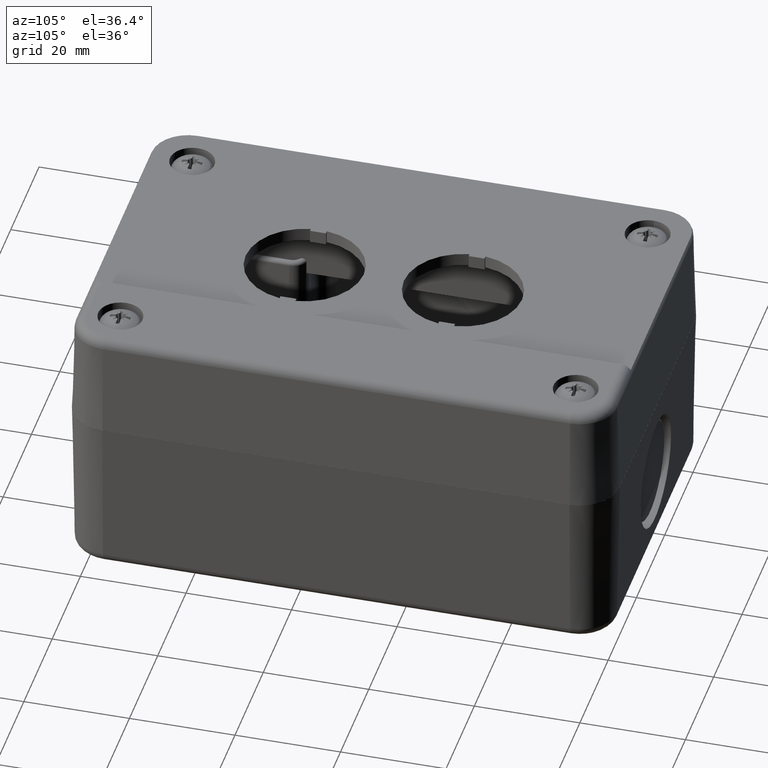
[diagram: clean part render]
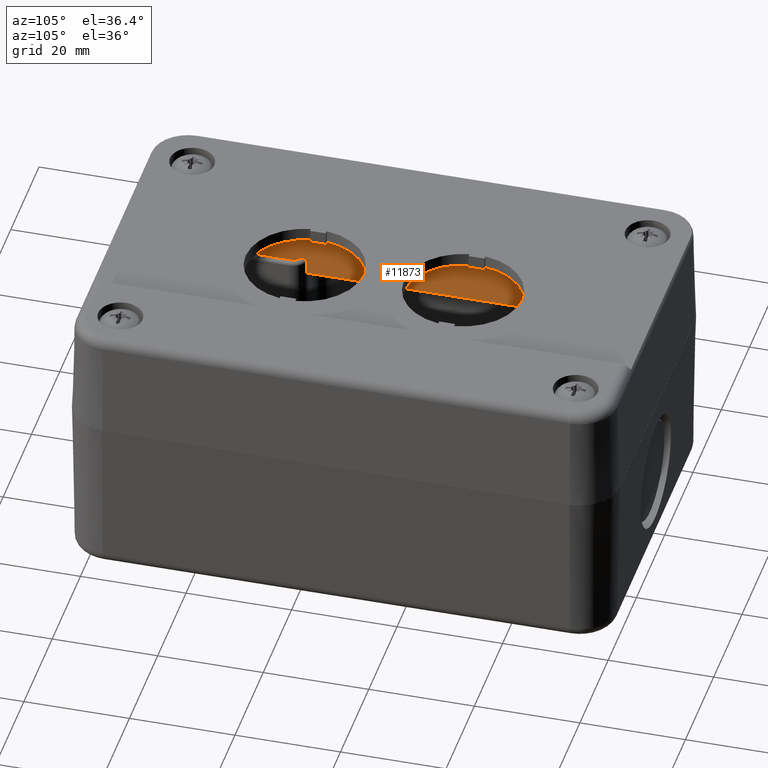
[diagram: same view with one face highlighted and labeled with its STEP entity id]
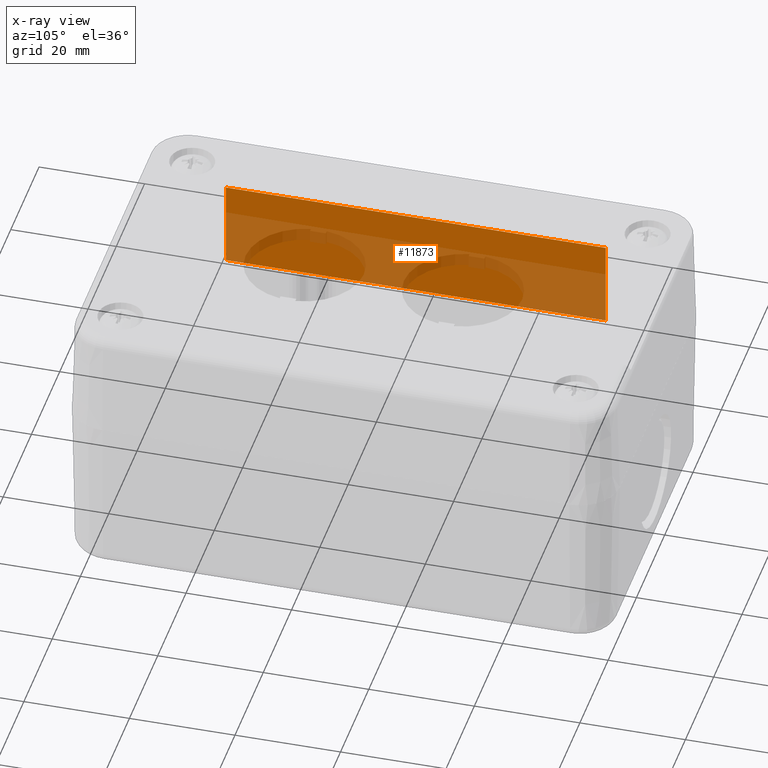
[diagram: x-ray of the same camera — body ghosted, the highlighted face saturated]
A machine part, auxiliary view. The second image highlights one B-rep face of the part: STEP entity #11873.
The next image is the same camera in x-ray: the body ghosted, the highlighted face saturated — about 43% of this face is hidden behind the body in this view.
In plain terms, the highlighted planar face has unit normal (-1, -0, 0).
Its self-contained STEP definition (entity closure, byte-faithful):
#11575=CARTESIAN_POINT('',(21.566175984561113,16.035100308944426,20.0));
#11576=VERTEX_POINT('',#11575);
#11584=CARTESIAN_POINT('',(21.566175984561120,-55.964899691055564,20.0));
#11585=VERTEX_POINT('',#11584);
#11586=CARTESIAN_POINT('',(21.566175984561113,16.035100308944426,20.0));
#11587=DIRECTION('',(0.0,-1.0,0.0));
#11588=VECTOR('',#11587,71.999999999999986);
#11589=LINE('',#11586,#11588);
#11590=EDGE_CURVE('',#11576,#11585,#11589,.T.);
#11830=CARTESIAN_POINT('',(21.566175984561120,-55.964899691055564,3.499999999999999));
#11831=VERTEX_POINT('',#11830);
#11841=CARTESIAN_POINT('',(21.566175984561120,-55.964899691055564,20.0));
#11842=DIRECTION('',(0.0,0.0,-1.0));
#11843=VECTOR('',#11842,16.500000000000000);
#11844=LINE('',#11841,#11843);
#11845=EDGE_CURVE('',#11585,#11831,#11844,.T.);
#11850=CARTESIAN_POINT('',(21.566175984561120,-55.964899691055564,20.0));
#11851=DIRECTION('',(1.0,0.0,0.0));
#11852=DIRECTION('',(0.0,0.0,-1.0));
#11853=AXIS2_PLACEMENT_3D('',#11850,#11851,#11852);
#11854=PLANE('',#11853);
#11855=CARTESIAN_POINT('',(21.566175984561113,16.035100308944426,3.499999999999999));
#11856=VERTEX_POINT('',#11855);
#11857=CARTESIAN_POINT('',(21.566175984561120,-55.964899691055564,3.499999999999999));
#11858=DIRECTION('',(0.0,1.0,0.0));
#11859=VECTOR('',#11858,71.999999999999986);
#11860=LINE('',#11857,#11859);
#11861=EDGE_CURVE('',#11831,#11856,#11860,.T.);
#11862=ORIENTED_EDGE('',*,*,#11861,.F.);
#11863=ORIENTED_EDGE('',*,*,#11845,.F.);
#11864=ORIENTED_EDGE('',*,*,#11590,.F.);
#11865=CARTESIAN_POINT('',(21.566175984561113,16.035100308944426,20.0));
#11866=DIRECTION('',(0.0,0.0,-1.0));
#11867=VECTOR('',#11866,16.500000000000000);
#11868=LINE('',#11865,#11867);
#11869=EDGE_CURVE('',#11576,#11856,#11868,.T.);
#11870=ORIENTED_EDGE('',*,*,#11869,.T.);
#11871=EDGE_LOOP('',(#11862,#11863,#11864,#11870));
#11872=FACE_OUTER_BOUND('',#11871,.T.);
#11873=ADVANCED_FACE('',(#11872),#11854,.F.);